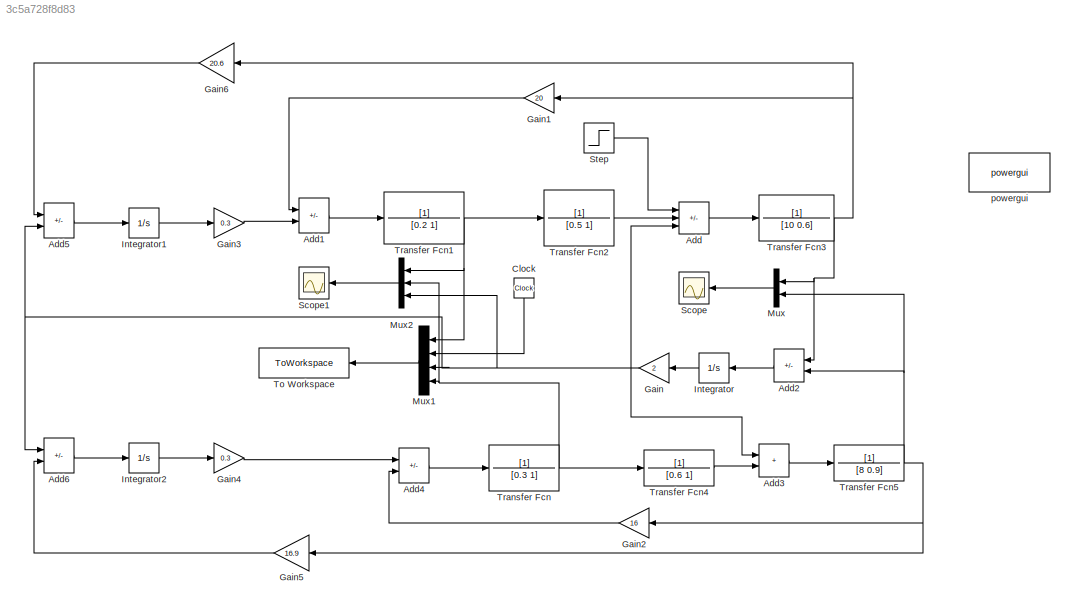
MODEL slx_3c5a728f8d83
KIND model
CONFIG AbsTol = auto
CONFIG EnableMultiTasking = off
CONFIG FixedStep = auto
CONFIG MaxStep = 1e-4
CONFIG MinStep = auto
CONFIG RelTol = 1e-3
CONFIG SampleTimeConstraint = Unconstrained
CONFIG Solver = VariableStepAuto
CONFIG SolverName = VariableStepAuto
CONFIG StartTime = 0.0
CONFIG StopTime = 30
BLOCK [Sum] Add
  IconShape = rectangular
  Inputs = -+-
  NameLocation = top
  Ports = [3, 1]
BLOCK [Sum] Add1
  IconShape = rectangular
  Inputs = -+
  NameLocation = top
  Ports = [2, 1]
BLOCK [Sum] Add2
  IconShape = rectangular
  Inputs = +-
  Ports = [2, 1]
BLOCK [Sum] Add3
  IconShape = rectangular
  NameLocation = top
  Ports = [2, 1]
BLOCK [Sum] Add4
  IconShape = rectangular
  Inputs = +-
  NameLocation = top
  Ports = [2, 1]
BLOCK [Sum] Add5
  IconShape = rectangular
  Inputs = --
  NameLocation = top
  Ports = [2, 1]
BLOCK [Sum] Add6
  IconShape = rectangular
  Inputs = +-
  NameLocation = top
  Ports = [2, 1]
BLOCK [Clock] Clock 
  NameLocation = right
BLOCK [Gain] Gain
  Gain = 2
  NameLocation = top
BLOCK [Gain] Gain1
  Gain = 20
  NameLocation = top
BLOCK [Gain] Gain2
  Gain = 16
  NameLocation = top
BLOCK [Gain] Gain3
  Gain = 0.3
BLOCK [Gain] Gain4
  Gain = 0.3
BLOCK [Gain] Gain5
  Gain = 16.9
  NameLocation = top
BLOCK [Gain] Gain6
  Gain = 20.6
  NameLocation = top
BLOCK [Integrator] Integrator
  NameLocation = top
  Ports = [1, 1]
BLOCK [Integrator] Integrator1
  Ports = [1, 1]
BLOCK [Integrator] Integrator2
  Ports = [1, 1]
BLOCK [Mux] Mux
  DisplayOption = bar
  Inputs = 2
  NameLocation = top
  Ports = [2, 1]
BLOCK [Mux] Mux1
  DisplayOption = bar
  NameLocation = top
  Ports = [4, 1]
BLOCK [Mux] Mux2
  DisplayOption = bar
  Inputs = 3
  NameLocation = top
  Ports = [3, 1]
BLOCK [Scope] Scope
  Floating = off
  NameLocation = top
  NumInputPorts = 1
  Ports = [1]
  ScopeSpecificationString = Simulink.scopes.TimeScopeBlockCfg('CurrentConfiguration', extmgr.ConfigurationSet(extmgr.Configuration('Core','General UI',true,'FigureColor',[0 0 0]),extmgr.Configuration('Core','Source UI',true),extmgr.Configuration('Sources','WiredSimulink',true),extmgr.Configuration('Visuals','Time Domain',true,'SerializedDisplays',{struct('MinYLimReal','-0.015','MaxYLimReal','0.005','YLabelReal','pu','MinYLim...<+1843ch>
BLOCK [Scope] Scope1
  Floating = off
  NameLocation = top
  NumInputPorts = 1
  Ports = [1]
  ScopeSpecificationString = Simulink.scopes.TimeScopeBlockCfg('CurrentConfiguration', extmgr.ConfigurationSet(extmgr.Configuration('Core','General UI',true),extmgr.Configuration('Core','Source UI',true),extmgr.Configuration('Sources','WiredSimulink',true,'DataLoggingVariableName','ScopeData1'),extmgr.Configuration('Visuals','Time Domain',true,'SerializedDisplays',{struct('MinYLimReal','-0.05','MaxYLimReal','0.35','YLabelReal...<+2031ch>
BLOCK [Step] Step
  After = 0.185
  SampleTime = 0
  Time = 0
BLOCK [ToWorkspace] To Workspace
  FixptAsFi = on
  MaxDataPoints = inf
  NameLocation = top
  Ports = [1]
  SampleTime = -1
  SaveFormat = Timeseries
  VariableName = simout
BLOCK [TransferFcn] Transfer Fcn
  Denominator = [0.3 1]
BLOCK [TransferFcn] Transfer Fcn1
  Denominator = [0.2 1]
BLOCK [TransferFcn] Transfer Fcn2
  Denominator = [0.5 1]
BLOCK [TransferFcn] Transfer Fcn3
  Denominator = [10 0.6]
BLOCK [TransferFcn] Transfer Fcn4
  Denominator = [0.6 1]
BLOCK [TransferFcn] Transfer Fcn5
  Denominator = [8 0.9]
BLOCK [Reference] powergui  REF=powerlib/powergui
  Ports = []
  Priority = 1
  SourceBlock = powerlib/powergui
  SourceProductBaseCode = PS
  SourceType = PSB option menu block
LINE Add1:1 -> Transfer Fcn1:1
LINE Add2:1 -> Integrator:1
LINE Add3:1 -> Transfer Fcn5:1
LINE Add4:1 -> Transfer Fcn:1
LINE Add5:1 -> Integrator1:1
LINE Add6:1 -> Integrator2:1
LINE Add:1 -> Transfer Fcn3:1
LINE Clock :1 -> Mux1:2
LINE Gain1:1 -> Add1:1
LINE Gain2:1 -> Add4:2
LINE Gain3:1 -> Add1:2
LINE Gain4:1 -> Add4:1
LINE Gain5:1 -> Add6:2
LINE Gain6:1 -> Add5:1
NET Gain:1 -> Add3:1, Add5:2, Add6:1, Add:3, Mux1:3, Mux2:3
LINE Integrator1:1 -> Gain3:1
LINE Integrator2:1 -> Gain4:1
LINE Integrator:1 -> Gain:1
LINE Mux1:1 -> To Workspace:1
LINE Mux2:1 -> Scope1:1
LINE Mux:1 -> Scope:1
LINE Step:1 -> Add:1
NET Transfer Fcn1:1 -> Mux1:1, Mux2:1, Transfer Fcn2:1
LINE Transfer Fcn2:1 -> Add:2
NET Transfer Fcn3:1 -> Add2:1, Gain1:1, Gain6:1, Mux:1
LINE Transfer Fcn4:1 -> Add3:2
NET Transfer Fcn5:1 -> Add2:2, Gain2:1, Gain5:1, Mux:2
NET Transfer Fcn:1 -> Mux1:4, Mux2:2, Transfer Fcn4:1
note: NET lines group one-source signal fan-out (src -> all destinations, sorted); 1:1 wires keep LINE
